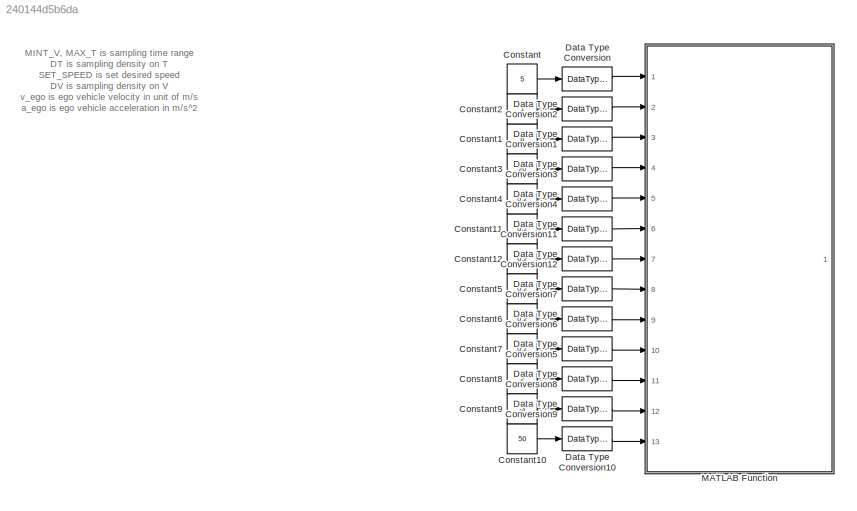
MODEL slx_240144d5b6da
KIND model
CONFIG AbsTol = auto
CONFIG EnableMultiTasking = off
CONFIG FixedStep = auto
CONFIG MaxStep = auto
CONFIG MinStep = auto
CONFIG RelTol = 1e-3
CONFIG SampleTimeConstraint = Unconstrained
CONFIG Solver = VariableStepAuto
CONFIG SolverName = VariableStepAuto
CONFIG StartTime = 0.0
CONFIG StopTime = 10.0
BLOCK [Constant] Constant
  OutDataTypeStr = single
  Value = 5
BLOCK [Constant] Constant1
  OutDataTypeStr = single
  Value = 8
BLOCK [Constant] Constant10
  OutDataTypeStr = single
  Value = 50
BLOCK [Constant] Constant11
  OutDataTypeStr = single
  Value = 0.2
BLOCK [Constant] Constant12
  OutDataTypeStr = single
  Value = 0.2
BLOCK [Constant] Constant2
  OutDataTypeStr = single
BLOCK [Constant] Constant3
  OutDataTypeStr = single
  Value = 20
BLOCK [Constant] Constant4
  OutDataTypeStr = single
  Value = 0.2
BLOCK [Constant] Constant5
  OutDataTypeStr = single
  Value = 0.2
BLOCK [Constant] Constant6
  OutDataTypeStr = single
  Value = 0.2
BLOCK [Constant] Constant7
  OutDataTypeStr = single
  Value = 0.2
BLOCK [Constant] Constant8
  OutDataTypeStr = single
  Value = 2
BLOCK [Constant] Constant9
  OutDataTypeStr = single
  Value = -3
BLOCK [DataTypeConversion] Data Type Conversion
  OutDataTypeStr = double
  RndMeth = Floor
  SaturateOnIntegerOverflow = off
BLOCK [DataTypeConversion] Data Type Conversion1
  OutDataTypeStr = double
  RndMeth = Floor
  SaturateOnIntegerOverflow = off
BLOCK [DataTypeConversion] Data Type Conversion10
  OutDataTypeStr = double
  RndMeth = Floor
  SaturateOnIntegerOverflow = off
BLOCK [DataTypeConversion] Data Type Conversion11
  OutDataTypeStr = double
  RndMeth = Floor
  SaturateOnIntegerOverflow = off
BLOCK [DataTypeConversion] Data Type Conversion12
  OutDataTypeStr = double
  RndMeth = Floor
  SaturateOnIntegerOverflow = off
BLOCK [DataTypeConversion] Data Type Conversion2
  OutDataTypeStr = double
  RndMeth = Floor
  SaturateOnIntegerOverflow = off
BLOCK [DataTypeConversion] Data Type Conversion3
  OutDataTypeStr = double
  RndMeth = Floor
  SaturateOnIntegerOverflow = off
BLOCK [DataTypeConversion] Data Type Conversion4
  OutDataTypeStr = double
  RndMeth = Floor
  SaturateOnIntegerOverflow = off
BLOCK [DataTypeConversion] Data Type Conversion5
  OutDataTypeStr = double
  RndMeth = Floor
  SaturateOnIntegerOverflow = off
BLOCK [DataTypeConversion] Data Type Conversion6
  OutDataTypeStr = double
  RndMeth = Floor
  SaturateOnIntegerOverflow = off
BLOCK [DataTypeConversion] Data Type Conversion7
  OutDataTypeStr = double
  RndMeth = Floor
  SaturateOnIntegerOverflow = off
BLOCK [DataTypeConversion] Data Type Conversion8
  OutDataTypeStr = double
  RndMeth = Floor
  SaturateOnIntegerOverflow = off
BLOCK [DataTypeConversion] Data Type Conversion9
  OutDataTypeStr = double
  RndMeth = Floor
  SaturateOnIntegerOverflow = off
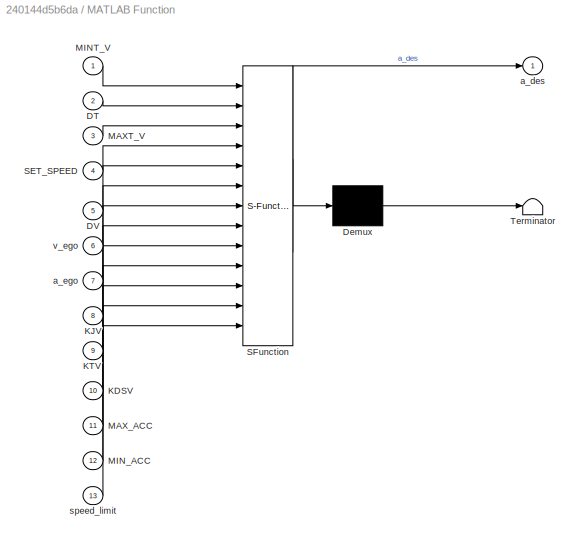
BLOCK [SubSystem] MATLAB Function
  ErrorFcn = Stateflow.Translate.translate
  PermitHierarchicalResolution = ExplicitOnly
  Ports = [13, 1]
  RequestExecContextInheritance = off
  SFBlockType = MATLAB Function
  TreatAsAtomicUnit = on
BLOCK [Demux] MATLAB Function/ Demux 
  Outputs = 1
  Ports = [1, 1]
BLOCK [S-Function] MATLAB Function/ SFunction 
  EnableBusSupport = on
  FunctionName = sf_sfun
  PortCounts = [13 2]
  Ports = [13, 2]
  SFcnIsStateOwnerBlock = off
  SFunctionDeploymentMode = off
  Tag = Stateflow S-Function cruiseControl 2
BLOCK [Terminator] MATLAB Function/ Terminator 
BLOCK [Inport] MATLAB Function/DT
  IconDisplay = Port number
  Port = 2
BLOCK [Inport] MATLAB Function/DV
  IconDisplay = Port number
  Port = 5
BLOCK [Inport] MATLAB Function/KDSV
  IconDisplay = Port number
  Port = 10
BLOCK [Inport] MATLAB Function/KJV
  IconDisplay = Port number
  Port = 8
BLOCK [Inport] MATLAB Function/KTV
  IconDisplay = Port number
  Port = 9
BLOCK [Inport] MATLAB Function/MAXT_V
  IconDisplay = Port number
  Port = 3
BLOCK [Inport] MATLAB Function/MAX_ACC
  IconDisplay = Port number
  Port = 11
BLOCK [Inport] MATLAB Function/MINT_V
  IconDisplay = Port number
BLOCK [Inport] MATLAB Function/MIN_ACC
  IconDisplay = Port number
  Port = 12
BLOCK [Inport] MATLAB Function/SET_SPEED
  IconDisplay = Port number
  Port = 4
BLOCK [Outport] MATLAB Function/a_des
  IconDisplay = Port number
BLOCK [Inport] MATLAB Function/a_ego
  IconDisplay = Port number
  Port = 7
BLOCK [Inport] MATLAB Function/speed_limit
  IconDisplay = Port number
  Port = 13
BLOCK [Inport] MATLAB Function/v_ego
  IconDisplay = Port number
  Port = 6
ANNOTATION (root): MINT_V, MAX_T is sampling time range DT is sampling density on T SET_SPEED is set desired speed DV is sampling density on V v_ego is ego vehicle velocity in unit of m/s a_ego is ego vehicle acceleration in m/s^2 KJV = 0.1 KTV = 0.1 KDSV = 1 MAX_ACC = 2; MIN_ACC = -3; speed_limit is road speed limit in unit of m/s
LINE Constant10:1 -> Data Type Conversion10:1
LINE Constant11:1 -> Data Type Conversion11:1
LINE Constant12:1 -> Data Type Conversion12:1
LINE Constant1:1 -> Data Type Conversion1:1
LINE Constant2:1 -> Data Type Conversion2:1
LINE Constant3:1 -> Data Type Conversion3:1
LINE Constant4:1 -> Data Type Conversion4:1
LINE Constant5:1 -> Data Type Conversion7:1
LINE Constant6:1 -> Data Type Conversion6:1
LINE Constant7:1 -> Data Type Conversion5:1
LINE Constant8:1 -> Data Type Conversion8:1
LINE Constant9:1 -> Data Type Conversion9:1
LINE Constant:1 -> Data Type Conversion:1
LINE Data Type Conversion10:1 -> MATLAB Function:13
LINE Data Type Conversion11:1 -> MATLAB Function:6
LINE Data Type Conversion12:1 -> MATLAB Function:7
LINE Data Type Conversion1:1 -> MATLAB Function:3
LINE Data Type Conversion2:1 -> MATLAB Function:2
LINE Data Type Conversion3:1 -> MATLAB Function:4
LINE Data Type Conversion4:1 -> MATLAB Function:5
LINE Data Type Conversion5:1 -> MATLAB Function:10
LINE Data Type Conversion6:1 -> MATLAB Function:9
LINE Data Type Conversion7:1 -> MATLAB Function:8
LINE Data Type Conversion8:1 -> MATLAB Function:11
LINE Data Type Conversion9:1 -> MATLAB Function:12
LINE Data Type Conversion:1 -> MATLAB Function:1
CHART MATLAB Function states=1 transitions=1
  STATE_LABEL 'eML_blk_kernel()'
  STATE_LABEL 'SCRIPT:\nfunction a_des = fcn(MINT_V,DT,MAXT_V, SET_SPEED,DV,v_ego, a_ego,KJV, KTV, KDSV,MAX_ACC, MIN_ACC,speed_limit)\n\n\n    [cost_graph] = cal_velocity_control(MINT_V,DT,MAXT_V, SET_SPEED,DV,v_ego, a_ego,KJV, KTV, KDSV); \n    [cost_optimal] = check_quantic_status(cost_graph,speed_limit, MAX_ACC, MIN_ACC); \n    [s_of_t, v_of_t,a_of_t,t_data] = combination_quantic(cost_optimal); \n    a_des = min(max...<+3608ch>'
